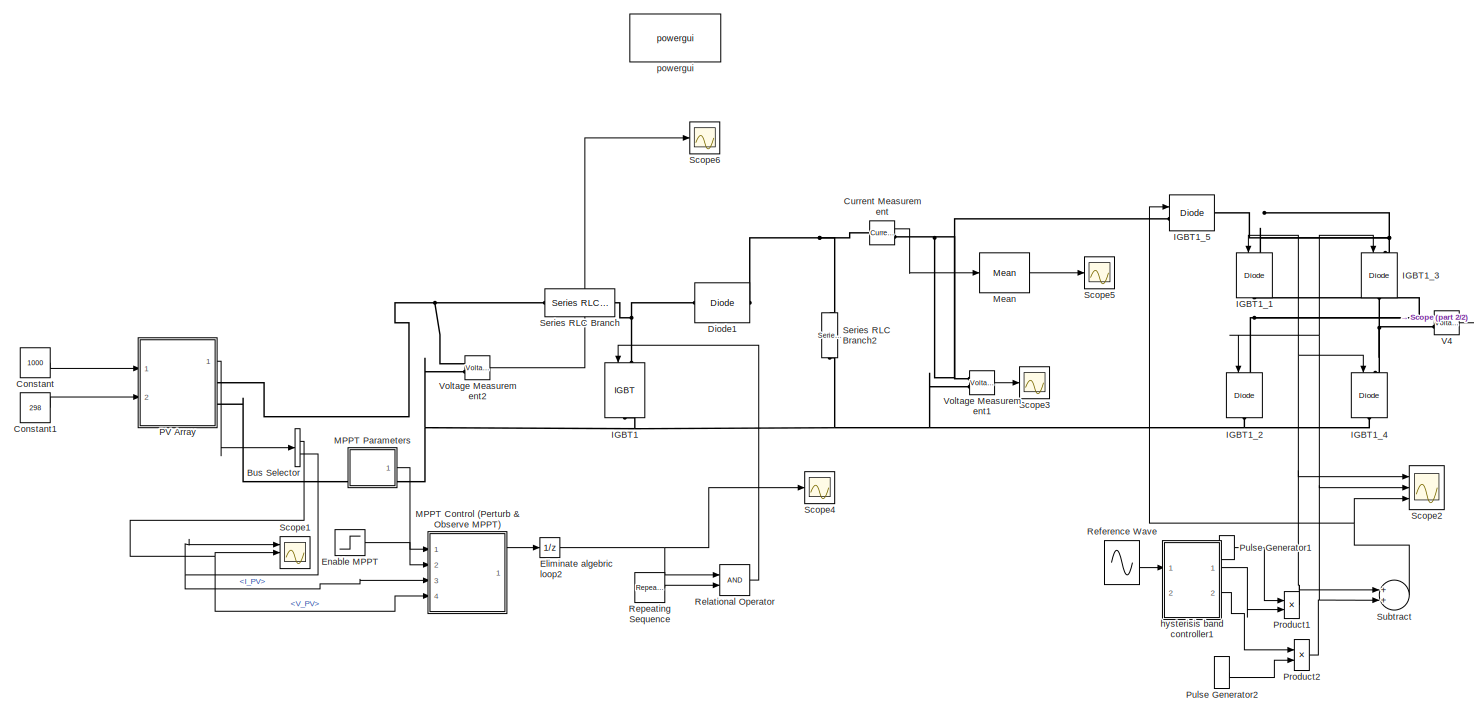
[diagram: root canvas - part 1/2, most of the canvas]
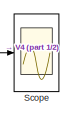
[diagram: root canvas - part 2/2, middle right region]
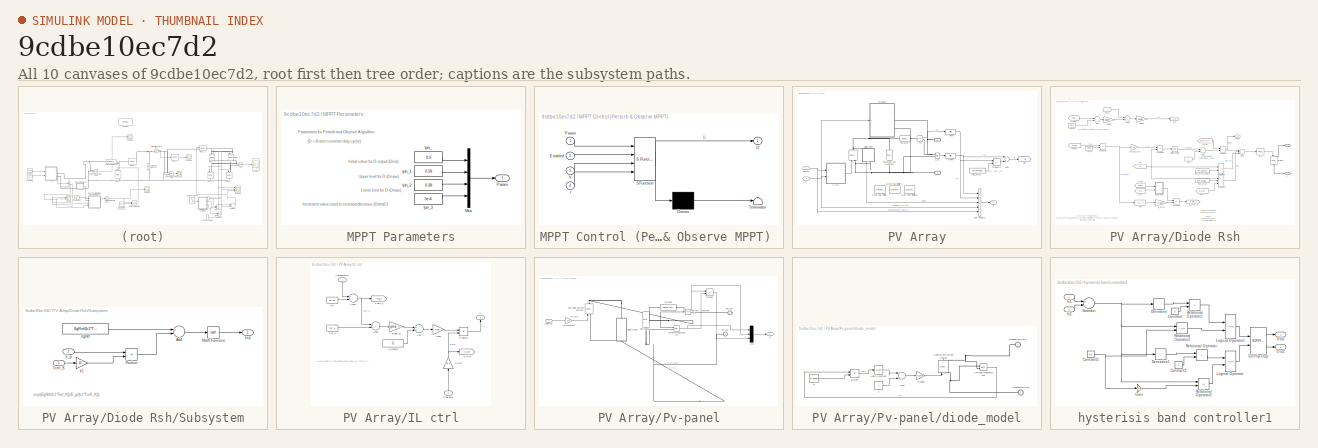
[diagram: thumbnail index - all 10 canvases of the model, root first then tree order]
MODEL slx_9cdbe10ec7d2
KIND model
CONFIG AbsTol = auto
CONFIG EnableMultiTasking = off
CONFIG FixedStep = auto
CONFIG MaxStep = auto
CONFIG MinStep = auto
CONFIG RelTol = 1e-3
CONFIG SampleTimeConstraint = Unconstrained
CONFIG Solver = VariableStepAuto
CONFIG SolverName = VariableStepAuto
CONFIG StartTime = 0.0
CONFIG StopTime = 2
BLOCK [BusSelector] Bus Selector
  OutputAsBus = off
  OutputSignals = V_PV,I_PV
  Ports = [1, 2]
BLOCK [Constant] Constant
  Value = 1000
BLOCK [Constant] Constant1
  Value = 298
BLOCK [Reference] Current Measurement  REF=powerlib/Measurements/Current Measurement
  Ports = [0, 1, 0, 0, 0, 1, 1]
  SourceBlock = powerlib/Measurements/Current Measurement
  SourceProductBaseCode = PS
  SourceProductName = Simscape Electrical
  SourceType = Current Measurement
  UserDataPersistent = on
BLOCK [Reference] Diode1  REF=powerlib/Power
Electronics/Diode
  Ports = [0, 0, 0, 0, 0, 1, 1]
  SourceBlock = powerlib/Power\nElectronics/Diode
  SourceProductBaseCode = PS
  SourceProductName = Simscape Electrical
  SourceType = Diode
BLOCK [UnitDelay] Eliminate algebric loop2
  InputProcessing = Elements as channels (sample based)
  SampleTime = Ts_Control
BLOCK [Step] Enable MPPT
  SampleTime = 0
  Time = 0.3
BLOCK [Reference] IGBT1  REF=powerlib/Power
Electronics/IGBT
  Ports = [1, 0, 0, 0, 0, 1, 1]
  SourceBlock = powerlib/Power\nElectronics/IGBT
  SourceProductBaseCode = PS
  SourceProductName = Simscape Electrical
  SourceType = IGBT
BLOCK [Reference] IGBT1_1  REF=powerlib/Power
Electronics/IGBT//Diode
  Ports = [1, 0, 0, 0, 0, 1, 1]
  SourceBlock = powerlib/Power\nElectronics/IGBT//Diode
  SourceProductBaseCode = PS
  SourceProductName = Simscape Electrical
  SourceType = IGBT/Diode
BLOCK [Reference] IGBT1_2  REF=powerlib/Power
Electronics/IGBT//Diode
  Ports = [1, 0, 0, 0, 0, 1, 1]
  SourceBlock = powerlib/Power\nElectronics/IGBT//Diode
  SourceProductBaseCode = PS
  SourceProductName = Simscape Electrical
  SourceType = IGBT/Diode
BLOCK [Reference] IGBT1_3  REF=powerlib/Power
Electronics/IGBT//Diode
  Ports = [1, 0, 0, 0, 0, 1, 1]
  SourceBlock = powerlib/Power\nElectronics/IGBT//Diode
  SourceProductBaseCode = PS
  SourceProductName = Simscape Electrical
  SourceType = IGBT/Diode
BLOCK [Reference] IGBT1_4  REF=powerlib/Power
Electronics/IGBT//Diode
  Ports = [1, 0, 0, 0, 0, 1, 1]
  SourceBlock = powerlib/Power\nElectronics/IGBT//Diode
  SourceProductBaseCode = PS
  SourceProductName = Simscape Electrical
  SourceType = IGBT/Diode
BLOCK [Reference] IGBT1_5  REF=powerlib/Power
Electronics/IGBT//Diode
  Ports = [1, 0, 0, 0, 0, 1, 1]
  SourceBlock = powerlib/Power\nElectronics/IGBT//Diode
  SourceProductBaseCode = PS
  SourceProductName = Simscape Electrical
  SourceType = IGBT/Diode
BLOCK [SubSystem] MPPT Control (Perturb & Observe MPPT) 
  ErrorFcn = Stateflow.Translate.translate
  PermitHierarchicalResolution = ExplicitOnly
  Ports = [4, 1]
  RequestExecContextInheritance = off
  SFBlockType = MATLAB Function
  TreatAsAtomicUnit = on
BLOCK [Demux] MPPT Control (Perturb & Observe MPPT) / Demux 
  Outputs = 1
  Ports = [1, 1]
BLOCK [S-Function] MPPT Control (Perturb & Observe MPPT) / SFunction 
  EnableBusSupport = on
  FunctionName = sf_sfun
  PortCounts = [4 2]
  Ports = [4, 2]
  SFcnIsStateOwnerBlock = off
  SFunctionDeploymentMode = off
  Tag = Stateflow S-Function modelv1 4
BLOCK [Terminator] MPPT Control (Perturb & Observe MPPT) / Terminator 
BLOCK [Outport] MPPT Control (Perturb & Observe MPPT) /D
  IconDisplay = Port number
BLOCK [Inport] MPPT Control (Perturb & Observe MPPT) /Enabled
  IconDisplay = Port number
  Port = 2
BLOCK [Inport] MPPT Control (Perturb & Observe MPPT) /I
  IconDisplay = Port number
  Port = 4
BLOCK [Inport] MPPT Control (Perturb & Observe MPPT) /Param
  IconDisplay = Port number
BLOCK [Inport] MPPT Control (Perturb & Observe MPPT) /V
  IconDisplay = Port number
  Port = 3
BLOCK [SubSystem] MPPT Parameters
  Ports = [0, 1]
  RequestExecContextInheritance = off
BLOCK [Constant] MPPT Parameters/Iph_
  Value = 0.5
BLOCK [Constant] MPPT Parameters/Iph_1
  Value = 0.58
BLOCK [Constant] MPPT Parameters/Iph_2
  Value = 0.38
BLOCK [Constant] MPPT Parameters/Iph_3
  Value = 3e-4
BLOCK [Mux] MPPT Parameters/Mux
  DisplayOption = bar
  Ports = [4, 1]
BLOCK [Outport] MPPT Parameters/Param
  IconDisplay = Port number
BLOCK [Reference] Mean  REF=powerlib_meascontrol/Measurements/Mean
  Ports = [1, 1]
  SourceBlock = powerlib_meascontrol/Measurements/Mean
  SourceProductBaseCode = PS
  SourceProductName = Simscape Electrical
  SourceType = Mean
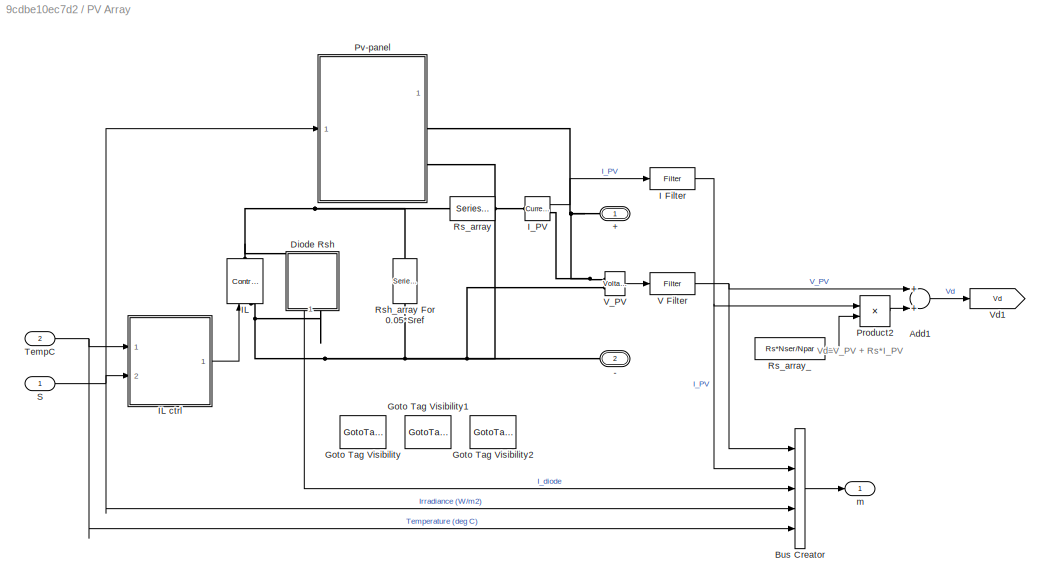
BLOCK [SubSystem] PV Array
  AncestorBlock = re_lib/Solar/PV Array
  CloseFcn = sps_rtmsupport('CloseFcn',gcbh);
  CopyFcn = sps_rtmsupport('CopyFcn',gcbh);
  DeleteFcn = sps_rtmsupport('DeleteFcn',gcbh);
  DialogController = POWERSYS.PowerSysDialog
  LoadFcn = sps_rtmsupport('LoadFcn',gcbh);
  ModelCloseFcn = sps_rtmsupport('ModelCloseFcn',gcbh);
  NameChangeFcn = sps_rtmsupport('NameChangeFcn',gcbh);
  OpenFcn = %assignin('base','PVMaskOpening',1);\n%open_system(gcb,'mask')\n%assignin('base','PVMaskOpening',0);\nsps_rtmsupport('OpenFcn',gcbh, [3 6 7 23]);
  Ports = [2, 1, 0, 0, 0, 0, 2]
  PostSaveFcn = sps_rtmsupport('PostSaveFcn',gcbh);
  PreCopyFcn = sps_rtmsupport('PreCopyFcn',gcbh);
  PreDeleteFcn = sps_rtmsupport('PreDeleteFcn',gcbh);
  PreSaveFcn = sps_rtmsupport('PreSaveFcn',gcbh);
  RequestExecContextInheritance = off
  StartFcn = sps_rtmsupport('StartFcn',gcbh);
  StopFcn = sps_rtmsupport('StopFcn',gcbh);
  UndoDeleteFcn = sps_rtmsupport('UndoDeleteFcn',gcbh);
BLOCK [PMIOPort] PV Array/+
  Side = Right
BLOCK [PMIOPort] PV Array/-
  Port = 2
  Side = Right
BLOCK [Sum] PV Array/Add1
  InputSameDT = off
  OutDataTypeStr = Inherit: Inherit via internal rule
  Ports = [2, 1]
  SaturateOnIntegerOverflow = off
BLOCK [BusCreator] PV Array/Bus Creator
  DisplayOption = bar
  InheritFromInputs = on
  Inputs = 5
  Ports = [5, 1]
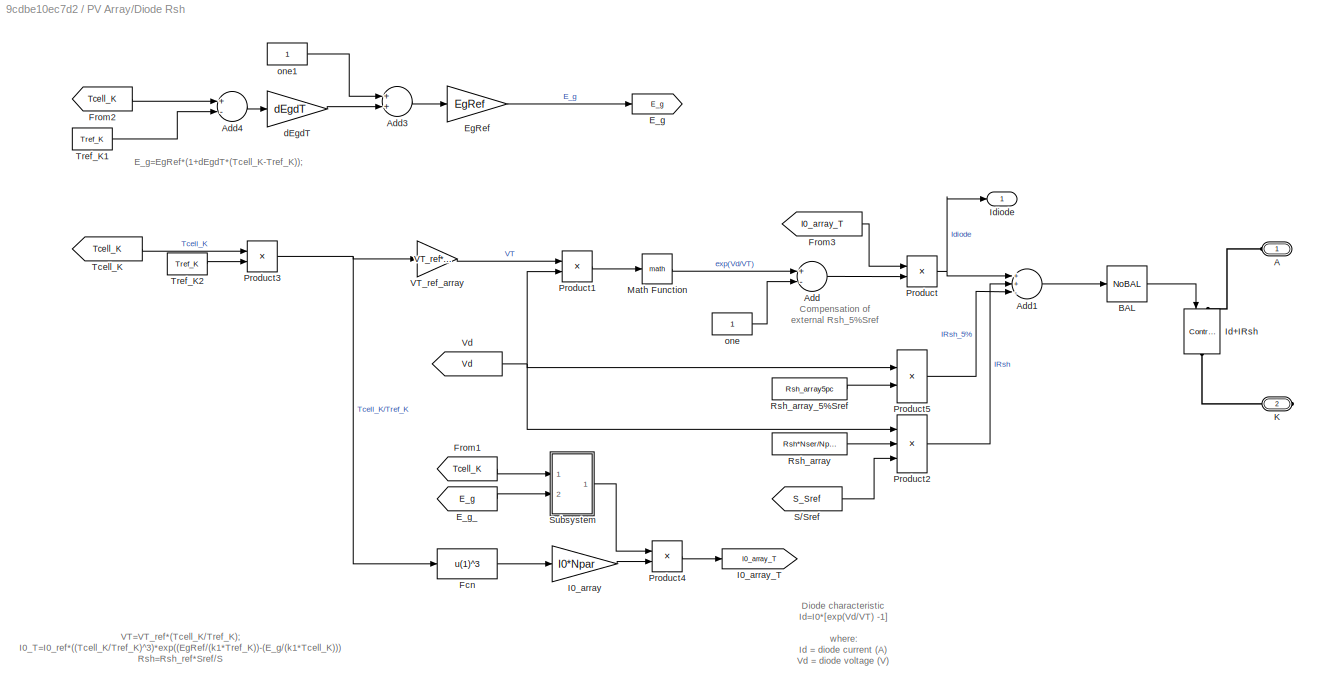
BLOCK [SubSystem] PV Array/Diode Rsh
  Ports = [0, 1, 0, 0, 0, 1, 1]
  RequestExecContextInheritance = off
BLOCK [PMIOPort] PV Array/Diode Rsh/A
  Side = Left
BLOCK [Sum] PV Array/Diode Rsh/Add
  InputSameDT = off
  Inputs = +-
  OutDataTypeStr = Inherit: Inherit via internal rule
  Ports = [2, 1]
  SaturateOnIntegerOverflow = off
BLOCK [Sum] PV Array/Diode Rsh/Add1
  InputSameDT = off
  Inputs = ++-
  OutDataTypeStr = Inherit: Inherit via internal rule
  Ports = [3, 1]
  SaturateOnIntegerOverflow = off
BLOCK [Sum] PV Array/Diode Rsh/Add3
  InputSameDT = off
  OutDataTypeStr = Inherit: Inherit via internal rule
  Ports = [2, 1]
  SaturateOnIntegerOverflow = off
BLOCK [Sum] PV Array/Diode Rsh/Add4
  InputSameDT = off
  Inputs = +-
  OutDataTypeStr = Inherit: Inherit via internal rule
  Ports = [2, 1]
  SaturateOnIntegerOverflow = off
BLOCK [Reference] PV Array/Diode Rsh/BAL  REF=spsPVarrayModel/NoBAL
  Ports = [1, 1]
  SourceBlock = spsPVarrayModel/NoBAL
  SourceType = SubSystem
BLOCK [Goto] PV Array/Diode Rsh/E_g
  GotoTag = E_g
BLOCK [From] PV Array/Diode Rsh/E_g_
  GotoTag = E_g
BLOCK [Gain] PV Array/Diode Rsh/EgRef
  Gain = EgRef
  OutDataTypeStr = Inherit: Inherit via internal rule
  ParamDataTypeStr = Inherit: Inherit via internal rule
  SaturateOnIntegerOverflow = off
BLOCK [Fcn] PV Array/Diode Rsh/Fcn
  Expr = u(1)^3
BLOCK [From] PV Array/Diode Rsh/From1
  GotoTag = Tcell_K
  TagVisibility = scoped
BLOCK [From] PV Array/Diode Rsh/From2
  GotoTag = Tcell_K
  TagVisibility = scoped
BLOCK [From] PV Array/Diode Rsh/From3
  GotoTag = I0_array_T
BLOCK [Gain] PV Array/Diode Rsh/I0_array
  Gain = I0*Npar
  OutDataTypeStr = Inherit: Inherit via internal rule
  ParamDataTypeStr = Inherit: Inherit via internal rule
  SaturateOnIntegerOverflow = off
BLOCK [Goto] PV Array/Diode Rsh/I0_array_T
  GotoTag = I0_array_T
BLOCK [Reference] PV Array/Diode Rsh/Id+IRsh  REF=powerlib/Electrical
Sources/Controlled Current Source
  Ports = [1, 0, 0, 0, 0, 1, 1]
  SourceBlock = powerlib/Electrical\nSources/Controlled Current Source
  SourceProductBaseCode = PS
  SourceProductName = Simscape Electrical
  SourceType = Controlled Current Source
BLOCK [Outport] PV Array/Diode Rsh/Idiode
  IconDisplay = Port number
BLOCK [PMIOPort] PV Array/Diode Rsh/K
  Port = 2
  Side = Right
BLOCK [Math] PV Array/Diode Rsh/Math Function
  Ports = [1, 1]
BLOCK [Product] PV Array/Diode Rsh/Product
  InputSameDT = off
  OutDataTypeStr = Inherit: Inherit via internal rule
  Ports = [2, 1]
  SaturateOnIntegerOverflow = off
BLOCK [Product] PV Array/Diode Rsh/Product1
  InputSameDT = off
  Inputs = /*
  OutDataTypeStr = Inherit: Inherit via internal rule
  Ports = [2, 1]
  SaturateOnIntegerOverflow = off
BLOCK [Product] PV Array/Diode Rsh/Product2
  InputSameDT = off
  Inputs = */*
  OutDataTypeStr = Inherit: Inherit via internal rule
  Ports = [3, 1]
  SaturateOnIntegerOverflow = off
BLOCK [Product] PV Array/Diode Rsh/Product3
  InputSameDT = off
  Inputs = */
  OutDataTypeStr = Inherit: Inherit via internal rule
  Ports = [2, 1]
  SaturateOnIntegerOverflow = off
BLOCK [Product] PV Array/Diode Rsh/Product4
  InputSameDT = off
  Inputs = **
  OutDataTypeStr = Inherit: Inherit via internal rule
  Ports = [2, 1]
  SaturateOnIntegerOverflow = off
BLOCK [Product] PV Array/Diode Rsh/Product5
  InputSameDT = off
  Inputs = */
  OutDataTypeStr = Inherit: Inherit via internal rule
  Ports = [2, 1]
  SaturateOnIntegerOverflow = off
BLOCK [Constant] PV Array/Diode Rsh/Rsh_array
  Value = Rsh*Nser/Npar
BLOCK [Constant] PV Array/Diode Rsh/Rsh_array_5%Sref
  Value = Rsh_array5pc
BLOCK [From] PV Array/Diode Rsh/S//Sref
  GotoTag = S_Sref
  TagVisibility = scoped
BLOCK [SubSystem] PV Array/Diode Rsh/Subsystem
  Ports = [2, 1]
  RequestExecContextInheritance = off
BLOCK [Sum] PV Array/Diode Rsh/Subsystem/Add
  InputSameDT = off
  Inputs = +-
  OutDataTypeStr = Inherit: Inherit via internal rule
  Ports = [2, 1]
  SaturateOnIntegerOverflow = off
BLOCK [Inport] PV Array/Diode Rsh/Subsystem/E_g
  IconDisplay = Port number
  Port = 2
BLOCK [Constant] PV Array/Diode Rsh/Subsystem/EgRef
  Value = EgRef/(k1*Tref_K)
BLOCK [Math] PV Array/Diode Rsh/Subsystem/Math Function
  Ports = [1, 1]
BLOCK [Product] PV Array/Diode Rsh/Subsystem/Product
  InputSameDT = off
  Inputs = */
  OutDataTypeStr = Inherit: Inherit via internal rule
  Ports = [2, 1]
  RndMeth = Floor
  SaturateOnIntegerOverflow = off
BLOCK [Inport] PV Array/Diode Rsh/Subsystem/Tcell_K
  IconDisplay = Port number
BLOCK [Outport] PV Array/Diode Rsh/Subsystem/exp
  IconDisplay = Port number
BLOCK [Gain] PV Array/Diode Rsh/Subsystem/k1
  Gain = k1
  OutDataTypeStr = Inherit: Inherit via internal rule
  ParamDataTypeStr = Inherit: Inherit via internal rule
  SaturateOnIntegerOverflow = off
BLOCK [From] PV Array/Diode Rsh/Tcell_K
  GotoTag = Tcell_K
  TagVisibility = scoped
BLOCK [Constant] PV Array/Diode Rsh/Tref_K1
  Value = Tref_K
BLOCK [Constant] PV Array/Diode Rsh/Tref_K2
  Value = Tref_K
BLOCK [Gain] PV Array/Diode Rsh/VT_ref_array
  Gain = VT_ref*Nser
  OutDataTypeStr = Inherit: Inherit via internal rule
  ParamDataTypeStr = Inherit: Inherit via internal rule
  SaturateOnIntegerOverflow = off
BLOCK [From] PV Array/Diode Rsh/Vd
  GotoTag = Vd
  TagVisibility = scoped
BLOCK [Gain] PV Array/Diode Rsh/dEgdT
  Gain = dEgdT
  OutDataTypeStr = Inherit: Inherit via internal rule
  ParamDataTypeStr = Inherit: Inherit via internal rule
  SaturateOnIntegerOverflow = off
BLOCK [Constant] PV Array/Diode Rsh/one
BLOCK [Constant] PV Array/Diode Rsh/one1
BLOCK [GotoTagVisibility] PV Array/Goto Tag Visibility
  GotoTag = S_Sref
BLOCK [GotoTagVisibility] PV Array/Goto Tag Visibility1
  GotoTag = Vd
BLOCK [GotoTagVisibility] PV Array/Goto Tag Visibility2
  GotoTag = Tcell_K
BLOCK [Reference] PV Array/I Filter  REF=spsPVarrayModel/Filter
  Ports = [1, 1]
  SourceBlock = spsPVarrayModel/Filter
  SourceType = SubSystem
BLOCK [Reference] PV Array/IL  REF=powerlib/Electrical
Sources/Controlled Current Source
  Ports = [1, 0, 0, 0, 0, 1, 1]
  SourceBlock = powerlib/Electrical\nSources/Controlled Current Source
  SourceProductBaseCode = PS
  SourceProductName = Simscape Electrical
  SourceType = Controlled Current Source
BLOCK [SubSystem] PV Array/IL ctrl
  Ports = [2, 1]
  RequestExecContextInheritance = off
BLOCK [Constant] PV Array/IL ctrl/0_K
  Value = 273.15
BLOCK [Gain] PV Array/IL ctrl/1//Sref
  Gain = 1e-3
  OutDataTypeStr = Inherit: Inherit via internal rule
  ParamDataTypeStr = Inherit: Inherit via internal rule
  SaturateOnIntegerOverflow = off
BLOCK [Sum] PV Array/IL ctrl/Add
  InputSameDT = off
  OutDataTypeStr = Inherit: Inherit via internal rule
  Ports = [2, 1]
  SaturateOnIntegerOverflow = off
BLOCK [Sum] PV Array/IL ctrl/Add2
  InputSameDT = off
  OutDataTypeStr = Inherit: Inherit via internal rule
  Ports = [2, 1]
  SaturateOnIntegerOverflow = off
BLOCK [Sum] PV Array/IL ctrl/Add3
  InputSameDT = off
  Inputs = +-
  OutDataTypeStr = Inherit: Inherit via internal rule
  Ports = [2, 1]
  SaturateOnIntegerOverflow = off
BLOCK [Outport] PV Array/IL ctrl/IL
  IconDisplay = Port number
BLOCK [Constant] PV Array/IL ctrl/IL_module
  Value = IL
BLOCK [Inport] PV Array/IL ctrl/Irradiance
  IconDisplay = Port number
  Port = 2
BLOCK [Gain] PV Array/IL ctrl/Npar
  Gain = Npar
  OutDataTypeStr = Inherit: Inherit via internal rule
  ParamDataTypeStr = Inherit: Inherit via internal rule
  SaturateOnIntegerOverflow = off
BLOCK [Product] PV Array/IL ctrl/Product1
  InputSameDT = off
  Inputs = **
  OutDataTypeStr = Inherit: Inherit via internal rule
  Ports = [2, 1]
  SaturateOnIntegerOverflow = off
BLOCK [Goto] PV Array/IL ctrl/S//Sref
  GotoTag = S_Sref
  TagVisibility = scoped
BLOCK [Goto] PV Array/IL ctrl/Tcell_K
  GotoTag = Tcell_K
  TagVisibility = scoped
BLOCK [Inport] PV Array/IL ctrl/Temperature
  IconDisplay = Port number
BLOCK [Constant] PV Array/IL ctrl/Tref_K
  Value = Tref_K
BLOCK [Gain] PV Array/IL ctrl/alpha_Isc
  Gain = alpha_Isc
  OutDataTypeStr = Inherit: Inherit via internal rule
  ParamDataTypeStr = Inherit: Inherit via internal rule
  SaturateOnIntegerOverflow = off
BLOCK [Reference] PV Array/I_PV  REF=powerlib/Measurements/Current Measurement
  Ports = [0, 1, 0, 0, 0, 1, 1]
  SourceBlock = powerlib/Measurements/Current Measurement
  SourceProductBaseCode = PS
  SourceProductName = Simscape Electrical
  SourceType = Current Measurement
BLOCK [Product] PV Array/Product2
  InputSameDT = off
  Inputs = **
  OutDataTypeStr = Inherit: Inherit via internal rule
  Ports = [2, 1]
  SaturateOnIntegerOverflow = off
BLOCK [SubSystem] PV Array/Pv-panel
  Ports = [1, 1, 0, 0, 0, 0, 2]
  RequestExecContextInheritance = off
BLOCK [Reference] PV Array/Pv-panel/Controlled Current Source1  REF=powerlib/Electrical
Sources/Controlled Current Source
  Ports = [1, 0, 0, 0, 0, 1, 1]
  SourceBlock = powerlib/Electrical\nSources/Controlled Current Source
  SourceProductBaseCode = PS
  SourceProductName = Simscape Electrical
  SourceType = Controlled Current Source
BLOCK [Reference] PV Array/Pv-panel/Current Measurement  REF=powerlib/Measurements/Current Measurement
  Ports = [0, 1, 0, 0, 0, 1, 1]
  SourceBlock = powerlib/Measurements/Current Measurement
  SourceProductBaseCode = PS
  SourceProductName = Simscape Electrical
  SourceType = Current Measurement
BLOCK [Gain] PV Array/Pv-panel/Iph-panel//G0
  Gain = Iph_panel/G0
  OutDataTypeStr = Inherit: Inherit via internal rule
  ParamDataTypeStr = Inherit: Inherit via internal rule
  SaturateOnIntegerOverflow = off
BLOCK [Outport] PV Array/Pv-panel/M
  IconDisplay = Port number
BLOCK [Mux] PV Array/Pv-panel/Mux
  DisplayOption = bar
  Inputs = 3
  Ports = [3, 1]
BLOCK [Product] PV Array/Pv-panel/Product
  InputSameDT = off
  OutDataTypeStr = Inherit: Inherit via internal rule
  Ports = [2, 1]
  RndMeth = Floor
  SaturateOnIntegerOverflow = off
BLOCK [Reference] PV Array/Pv-panel/Rs_panel  REF=powerlib/Elements/Series RLC Branch
  Ports = [0, 0, 0, 0, 0, 1, 1]
  SourceBlock = powerlib/Elements/Series RLC Branch
  SourceProductBaseCode = PS
  SourceProductName = Simscape Electrical
  SourceType = Series RLC Branch
BLOCK [Reference] PV Array/Pv-panel/Rsh_panel  REF=powerlib/Elements/Series RLC Branch
  Ports = [0, 0, 0, 0, 0, 1, 1]
  SourceBlock = powerlib/Elements/Series RLC Branch
  SourceProductBaseCode = PS
  SourceProductName = Simscape Electrical
  SourceType = Series RLC Branch
BLOCK [PMIOPort] PV Array/Pv-panel/Vdc_out+
  Side = Right
BLOCK [PMIOPort] PV Array/Pv-panel/Vdc_out-
  Port = 2
  Side = Right
BLOCK [Reference] PV Array/Pv-panel/Voltage Measurement  REF=powerlib/Measurements/Voltage Measurement
  Ports = [0, 1, 0, 0, 0, 2]
  SourceBlock = powerlib/Measurements/Voltage Measurement
  SourceProductBaseCode = PS
  SourceProductName = Simscape Electrical
  SourceType = Voltage Measurement
BLOCK [SubSystem] PV Array/Pv-panel/diode_model
  Ports = [0, 0, 0, 0, 0, 1, 1]
  RequestExecContextInheritance = off
BLOCK [Constant] PV Array/Pv-panel/diode_model/1
BLOCK [PMIOPort] PV Array/Pv-panel/diode_model/Connection Port
  Side = Left
BLOCK [PMIOPort] PV Array/Pv-panel/diode_model/Connection Port1
  Port = 2
  Side = Right
BLOCK [Reference] PV Array/Pv-panel/diode_model/Controlled Current Source  REF=powerlib/Electrical
Sources/Controlled Current Source
  Ports = [1, 0, 0, 0, 0, 1, 1]
  SourceBlock = powerlib/Electrical\nSources/Controlled Current Source
  SourceProductBaseCode = PS
  SourceProductName = Simscape Electrical
  SourceType = Controlled Current Source
BLOCK [Product] PV Array/Pv-panel/diode_model/Divide
  InputSameDT = off
  OutDataTypeStr = Inherit: Inherit via internal rule
  Ports = [2, 1]
  RndMeth = Floor
  SaturateOnIntegerOverflow = off
BLOCK [Gain] PV Array/Pv-panel/diode_model/I0_panel
  Gain = I0_panel
  OutDataTypeStr = Inherit: Inherit via internal rule
  ParamDataTypeStr = Inherit: Inherit via internal rule
  SaturateOnIntegerOverflow = off
BLOCK [Math] PV Array/Pv-panel/diode_model/Math Function
  Ports = [1, 1]
BLOCK [Sum] PV Array/Pv-panel/diode_model/Sum
  InputSameDT = off
  Inputs = |+-
  OutDataTypeStr = Inherit: Inherit via internal rule
  Ports = [2, 1]
  SaturateOnIntegerOverflow = off
BLOCK [Reference] PV Array/Pv-panel/diode_model/Voltage Measurement  REF=powerlib/Measurements/Voltage Measurement
  Ports = [0, 1, 0, 0, 0, 2]
  SourceBlock = powerlib/Measurements/Voltage Measurement
  SourceProductBaseCode = PS
  SourceProductName = Simscape Electrical
  SourceType = Voltage Measurement
BLOCK [Constant] PV Array/Pv-panel/diode_model/vt
  Value = Vt_panel
BLOCK [Inport] PV Array/Pv-panel/iradian(g)
  IconDisplay = Port number
BLOCK [Reference] PV Array/Rs_array  REF=powerlib/Elements/Series RLC Branch
  Ports = [0, 0, 0, 0, 0, 1, 1]
  SourceBlock = powerlib/Elements/Series RLC Branch
  SourceProductBaseCode = PS
  SourceProductName = Simscape Electrical
  SourceType = Series RLC Branch
BLOCK [Constant] PV Array/Rs_array_
  Value = Rs*Nser/Npar
BLOCK [Reference] PV Array/Rsh_array For 0.05*Sref  REF=powerlib/Elements/Series RLC Branch
  Ports = [0, 0, 0, 0, 0, 1, 1]
  SourceBlock = powerlib/Elements/Series RLC Branch
  SourceProductBaseCode = PS
  SourceProductName = Simscape Electrical
  SourceType = Series RLC Branch
BLOCK [Inport] PV Array/S
  IconDisplay = Port number
BLOCK [Inport] PV Array/TempC
  IconDisplay = Port number
  Port = 2
BLOCK [Reference] PV Array/V Filter  REF=spsPVarrayModel/Filter
  Ports = [1, 1]
  SourceBlock = spsPVarrayModel/Filter
  SourceType = SubSystem
BLOCK [Reference] PV Array/V_PV  REF=powerlib/Measurements/Voltage Measurement
  Ports = [0, 1, 0, 0, 0, 2]
  SourceBlock = powerlib/Measurements/Voltage Measurement
  SourceProductBaseCode = PS
  SourceProductName = Simscape Electrical
  SourceType = Voltage Measurement
BLOCK [Goto] PV Array/Vd1
  GotoTag = Vd
  TagVisibility = scoped
BLOCK [Outport] PV Array/m
  IconDisplay = Port number
BLOCK [Product] Product1
  InputSameDT = off
  OutDataTypeStr = Inherit: Inherit via internal rule
  Ports = [2, 1]
  SaturateOnIntegerOverflow = off
BLOCK [Product] Product2
  InputSameDT = off
  OutDataTypeStr = Inherit: Inherit via internal rule
  Ports = [2, 1]
  SaturateOnIntegerOverflow = off
BLOCK [DiscretePulseGenerator] Pulse Generator1
  Period = 20e-3
  Ports = [0, 1]
  PulseType = Time based
  PulseWidth = 49.5
BLOCK [DiscretePulseGenerator] Pulse Generator2
  Period = 20e-3
  PhaseDelay = 10e-3
  Ports = [0, 1]
  PulseType = Time based
  PulseWidth = 49.5
BLOCK [Sin] Reference Wave
  Amplitude = 2
  Frequency = 2*pi*50
  Ports = [0, 1]
  SampleTime = 0
BLOCK [RelationalOperator] Relational Operator
  InputSameDT = off
  OutDataTypeStr = boolean
  Ports = [2, 1]
  RndMeth = Simplest
BLOCK [Reference] Repeating Sequence  REF=simulink/Sources/Repeating
Sequence
  Ports = [0, 1]
  SourceBlock = simulink/Sources/Repeating\nSequence
  SourceProductBaseCode = SL
  SourceProductName = Simulink
  SourceType = Repeating table
BLOCK [Scope] Scope
  Floating = off
  NumInputPorts = 1
  Ports = [1]
  ScopeSpecificationString = Simulink.scopes.TimeScopeBlockCfg('CurrentConfiguration', extmgr.ConfigurationSet(extmgr.Configuration('Core','General UI',true),extmgr.Configuration('Core','Source UI',true),extmgr.Configuration('Sources','WiredSimulink',true),extmgr.Configuration('Visuals','Time Domain',true,'SerializedDisplays',{struct('MinYLimReal','-125.00000','MaxYLimReal','125.00000','YLabelReal','','MinYLimMag',' 0.00000',...<+1384ch>
BLOCK [Scope] Scope1
  Floating = off
  NumInputPorts = 3
  Ports = [3]
  ScopeSpecificationString = Simulink.scopes.TimeScopeBlockCfg('CurrentConfiguration', extmgr.ConfigurationSet(extmgr.Configuration('Core','General UI',true),extmgr.Configuration('Core','Source UI',true),extmgr.Configuration('Sources','WiredSimulink',true,'DataLoggingSaveFormat','StructureWithTime','DataLoggingDecimation','1','DataLoggingDecimateData',true,'DataLoggingVariableName','ScopeData1'),extmgr.Configuration('Visuals'...<+3044ch>
BLOCK [Scope] Scope2
  Floating = off
  NumInputPorts = 3
  Ports = [3]
  ScopeSpecificationString = Simulink.scopes.TimeScopeBlockCfg('CurrentConfiguration', extmgr.ConfigurationSet(extmgr.Configuration('Core','General UI',true),extmgr.Configuration('Core','Source UI',true),extmgr.Configuration('Sources','WiredSimulink',true,'DataLogging',true,'DataLoggingVariableName','ScopeData2','DataLoggingSaveFormat','StructureWithTime','DataLoggingMaxPoints','500000','DataLoggingDecimation','1','DataLoggin...<+3170ch>
BLOCK [Scope] Scope3
  Floating = off
  NumInputPorts = 1
  Ports = [1]
  ScopeSpecificationString = Simulink.scopes.TimeScopeBlockCfg('CurrentConfiguration', extmgr.ConfigurationSet(extmgr.Configuration('Core','General UI',true),extmgr.Configuration('Core','Source UI',true),extmgr.Configuration('Sources','WiredSimulink',true,'DataLoggingVariableName','ScopeData3','DataLoggingSaveFormat','StructureWithTime','DataLoggingDecimation','1','DataLoggingDecimateData',true),extmgr.Configuration('Visuals'...<+1768ch>
BLOCK [Scope] Scope4
  Floating = off
  NumInputPorts = 1
  Ports = [1]
  ScopeSpecificationString = Simulink.scopes.TimeScopeBlockCfg('CurrentConfiguration', extmgr.ConfigurationSet(extmgr.Configuration('Core','General UI',true),extmgr.Configuration('Core','Source UI',true),extmgr.Configuration('Sources','WiredSimulink',true,'DataLoggingVariableName','ScopeData4','DataLoggingSaveFormat','StructureWithTime','DataLoggingDecimation','1','DataLoggingDecimateData',true),extmgr.Configuration('Visuals'...<+1723ch>
BLOCK [Scope] Scope5
  Floating = off
  NumInputPorts = 1
  Ports = [1]
  ScopeSpecificationString = Simulink.scopes.TimeScopeBlockCfg('CurrentConfiguration', extmgr.ConfigurationSet(extmgr.Configuration('Core','General UI',true),extmgr.Configuration('Core','Source UI',true),extmgr.Configuration('Sources','WiredSimulink',true,'DataLoggingVariableName','ScopeData5','DataLoggingSaveFormat','StructureWithTime','DataLoggingDecimation','1','DataLoggingDecimateData',true),extmgr.Configuration('Visuals'...<+1740ch>
BLOCK [Scope] Scope6
  Floating = off
  NumInputPorts = 1
  Ports = [1]
  ScopeSpecificationString = Simulink.scopes.TimeScopeBlockCfg('CurrentConfiguration', extmgr.ConfigurationSet(extmgr.Configuration('Core','General UI',true),extmgr.Configuration('Core','Source UI',true),extmgr.Configuration('Sources','WiredSimulink',true,'DataLoggingVariableName','ScopeData6','DataLoggingSaveFormat','StructureWithTime','DataLoggingDecimation','1','DataLoggingDecimateData',true),extmgr.Configuration('Visuals'...<+1739ch>
BLOCK [Reference] Series RLC Branch  REF=powerlib/Elements/Series RLC Branch
  Ports = [0, 0, 0, 0, 0, 1, 1]
  SourceBlock = powerlib/Elements/Series RLC Branch
  SourceProductBaseCode = PS
  SourceProductName = Simscape Electrical
  SourceType = Series RLC Branch
BLOCK [Reference] Series RLC Branch2  REF=powerlib/Elements/Series RLC Branch
  Ports = [0, 0, 0, 0, 0, 1, 1]
  SourceBlock = powerlib/Elements/Series RLC Branch
  SourceProductBaseCode = PS
  SourceProductName = Simscape Electrical
  SourceType = Series RLC Branch
BLOCK [Sum] Subtract
  InputSameDT = off
  OutDataTypeStr = Inherit: Inherit via internal rule
  Ports = [2, 1]
  SaturateOnIntegerOverflow = off
BLOCK [Reference] V4  REF=powerlib/Measurements/Voltage Measurement
  Ports = [0, 1, 0, 0, 0, 2]
  SourceBlock = powerlib/Measurements/Voltage Measurement
  SourceProductBaseCode = PS
  SourceProductName = Simscape Electrical
  SourceType = Voltage Measurement
BLOCK [Reference] Voltage Measurement1  REF=powerlib/Measurements/Voltage Measurement
  Ports = [0, 1, 0, 0, 0, 2]
  SourceBlock = powerlib/Measurements/Voltage Measurement
  SourceProductBaseCode = PS
  SourceProductName = Simscape Electrical
  SourceType = Voltage Measurement
BLOCK [Reference] Voltage Measurement2  REF=powerlib/Measurements/Voltage Measurement
  Ports = [0, 1, 0, 0, 0, 2]
  SourceBlock = powerlib/Measurements/Voltage Measurement
  SourceProductBaseCode = PS
  SourceProductName = Simscape Electrical
  SourceType = Voltage Measurement
BLOCK [SubSystem] hysterisis band controller1
  Ports = [2, 2]
  RequestExecContextInheritance = off
BLOCK [Constant] hysterisis band controller1/Constant
  Value = 0
BLOCK [Constant] hysterisis band controller1/Constant1
  Value = 0
BLOCK [Constant] hysterisis band controller1/Constant2
  Value = 0.1
BLOCK [Derivative] hysterisis band controller1/Derivative
BLOCK [Derivative] hysterisis band controller1/Derivative1
BLOCK [Gain] hysterisis band controller1/Gain
  Gain = -1
  OutDataTypeStr = Inherit: Inherit via internal rule
  ParamDataTypeStr = Inherit: Inherit via internal rule
  SaturateOnIntegerOverflow = off
BLOCK [Inport] hysterisis band controller1/In1
  IconDisplay = Port number
BLOCK [Inport] hysterisis band controller1/In2
  IconDisplay = Port number
  Port = 2
BLOCK [Logic] hysterisis band controller1/Logical Operator
  AllPortsSameDT = off
  OutDataTypeStr = boolean
  Ports = [2, 1]
BLOCK [Logic] hysterisis band controller1/Logical Operator1
  AllPortsSameDT = off
  OutDataTypeStr = boolean
  Ports = [2, 1]
BLOCK [Outport] hysterisis band controller1/Out1
  IconDisplay = Port number
BLOCK [Outport] hysterisis band controller1/Out2
  IconDisplay = Port number
  Port = 2
BLOCK [RelationalOperator] hysterisis band controller1/Relational Operator
  InputSameDT = off
  Operator = <
  OutDataTypeStr = boolean
  Ports = [2, 1]
BLOCK [RelationalOperator] hysterisis band controller1/Relational Operator1
  InputSameDT = off
  Operator = >
  OutDataTypeStr = boolean
  Ports = [2, 1]
BLOCK [RelationalOperator] hysterisis band controller1/Relational Operator2
  InputSameDT = off
  OutDataTypeStr = boolean
  Ports = [2, 1]
BLOCK [RelationalOperator] hysterisis band controller1/Relational Operator3
  InputSameDT = off
  Operator = <=
  OutDataTypeStr = boolean
  Ports = [2, 1]
BLOCK [Reference] hysterisis band controller1/S-R Flip-Flop  REF=simulink_extras/Flip Flops/S-R
Flip-Flop
  Ports = [2, 2]
  SourceBlock = simulink_extras/Flip Flops/S-R\nFlip-Flop
  SourceProductBaseCode = SL
  SourceProductName = Simulink
  SourceType = SRFlipFlop
BLOCK [Sum] hysterisis band controller1/Subtract
  InputSameDT = off
  Inputs = +-
  OutDataTypeStr = Inherit: Inherit via internal rule
  Ports = [2, 1]
  SaturateOnIntegerOverflow = off
BLOCK [Reference] powergui  REF=powerlib/powergui
  Ports = []
  Priority = 1
  SourceBlock = powerlib/powergui
  SourceProductBaseCode = PS
  SourceProductName = Simscape Power Systems
  SourceType = PSB option menu block
ANNOTATION MPPT Parameters: (D = Boost converter duty cycle)
ANNOTATION MPPT Parameters: Increment value used to increase/decrease (DeltaD)
ANNOTATION MPPT Parameters: Initial value for D output (Dinit)
ANNOTATION MPPT Parameters: Lower limit for D (Dmax)
ANNOTATION MPPT Parameters: Parameters for Perturb and Observe Algorithm:
ANNOTATION MPPT Parameters: Upper limit for D (Dmax)
ANNOTATION PV Array: Vd=V_PV + Rs*I_PV
ANNOTATION PV Array/Diode Rsh: Compensation of external Rsh_5%Sref
ANNOTATION PV Array/Diode Rsh: Diode characteristic Id=I0*[exp(Vd/VT) -1] where: Id = diode current (A) Vd = diode voltage (V) I0 = diode saturation current (A) VT = temperature voltage = k*Tcell_K/q*nI*Ncell*Nser Tcell_K = cell temperature (K), k = Boltzman constant = 1.3806e-23 J.K^-1 q = electron charge = 1.6022e-19 C nI = diode ideality factor Ncell= number of series-connected cells per module Nser = number of series-connec...<+22ch>
ANNOTATION PV Array/Diode Rsh: E_g=EgRef*(1+dEgdT*(Tcell_K-Tref_K));
ANNOTATION PV Array/Diode Rsh: VT=VT_ref*(Tcell_K/Tref_K); I0_T=I0_ref*((Tcell_K/Tref_K)^3)*exp((EgRef/(k1*Tref_K))-(E_g/(k1*Tcell_K))) Rsh=Rsh_ref*Sref/S
ANNOTATION PV Array/Diode Rsh/Subsystem: exp((EgRef/(k1*Tref_K))-(E_g/(k1*Tcell_K)))
ANNOTATION PV Array/IL ctrl: IL=S/Sref*(IL_ref+alpha_isc*(Tcell_K-Tref_K));
ANNOTATION PV Array/Pv-panel: Iph_panel
ANNOTATION PV Array/Pv-panel: V-oc =0.6128V I_sc =8A
NET Bus Selector:1 -> MPPT Control (Perturb & Observe MPPT) :4, Scope1:2
NET Bus Selector:2 -> MPPT Control (Perturb & Observe MPPT) :3, Scope1:1
LINE Constant1:1 -> PV Array:2
LINE Constant:1 -> PV Array:1
LINE Current Measurement:1 -> Mean:1
NET Eliminate algebric loop2:1 -> Relational Operator:1, Scope4:1
LINE Enable MPPT:1 -> MPPT Control (Perturb & Observe MPPT) :2
LINE MPPT Control (Perturb & Observe MPPT) :1 -> Eliminate algebric loop2:1
LINE MPPT Parameters/Iph_1:1 -> MPPT Parameters/Mux:2
LINE MPPT Parameters/Iph_2:1 -> MPPT Parameters/Mux:3
LINE MPPT Parameters/Iph_3:1 -> MPPT Parameters/Mux:4
LINE MPPT Parameters/Iph_:1 -> MPPT Parameters/Mux:1
LINE MPPT Parameters/Mux:1 -> MPPT Parameters/Param:1
LINE MPPT Parameters:1 -> MPPT Control (Perturb & Observe MPPT) :1
LINE Mean:1 -> Scope5:1
LINE PV Array:1 -> Bus Selector:1
NET Product1:1 -> IGBT1_1:1, IGBT1_4:1, Scope2:1, Subtract:1
NET Product2:1 -> IGBT1_2:1, IGBT1_3:1, Scope2:2, Subtract:2
LINE Pulse Generator1:1 -> Product1:1
LINE Pulse Generator2:1 -> Product2:2
LINE Reference Wave:1 -> hysterisis band controller1:1
LINE Relational Operator:1 -> IGBT1:1
LINE Repeating Sequence:1 -> Relational Operator:2
NET Subtract:1 -> IGBT1_5:1, Scope2:3
LINE V4:1 -> Scope:1
LINE Voltage Measurement1:1 -> Scope3:1
LINE Voltage Measurement2:1 -> Scope6:1
LINE hysterisis band controller1/Constant1:1 -> hysterisis band controller1/Relational Operator:2
NET hysterisis band controller1/Constant2:1 -> hysterisis band controller1/Gain:1, hysterisis band controller1/Relational Operator2:2
LINE hysterisis band controller1/Constant:1 -> hysterisis band controller1/Relational Operator1:2
LINE hysterisis band controller1/Derivative1:1 -> hysterisis band controller1/Relational Operator:1
LINE hysterisis band controller1/Derivative:1 -> hysterisis band controller1/Relational Operator1:1
LINE hysterisis band controller1/Gain:1 -> hysterisis band controller1/Relational Operator3:2
LINE hysterisis band controller1/In1:1 -> hysterisis band controller1/Subtract:1
LINE hysterisis band controller1/In2:1 -> hysterisis band controller1/Subtract:2
LINE hysterisis band controller1/Logical Operator1:1 -> hysterisis band controller1/S-R Flip-Flop:1
LINE hysterisis band controller1/Logical Operator:1 -> hysterisis band controller1/S-R Flip-Flop:2
LINE hysterisis band controller1/Relational Operator1:1 -> hysterisis band controller1/Logical Operator1:1
LINE hysterisis band controller1/Relational Operator2:1 -> hysterisis band controller1/Logical Operator1:2
LINE hysterisis band controller1/Relational Operator3:1 -> hysterisis band controller1/Logical Operator:2
LINE hysterisis band controller1/Relational Operator:1 -> hysterisis band controller1/Logical Operator:1
LINE hysterisis band controller1/S-R Flip-Flop:1 -> hysterisis band controller1/Out1:1
LINE hysterisis band controller1/S-R Flip-Flop:2 -> hysterisis band controller1/Out2:1
NET hysterisis band controller1/Subtract:1 -> hysterisis band controller1/Derivative1:1, hysterisis band controller1/Derivative:1, hysterisis band controller1/Relational Operator2:1, hysterisis band controller1/Relational Operator3:1
LINE hysterisis band controller1:1 -> Product1:2
LINE hysterisis band controller1:2 -> Product2:1
PNET net1: Current Measurement:LConn1 -- Diode1:RConn1 -- Series RLC Branch2:RConn1
PNET net2: Current Measurement:RConn1 -- IGBT1_5:LConn1 -- Voltage Measurement1:LConn1
PNET net3: Diode1:LConn1 -- IGBT1:LConn1 -- Series RLC Branch:RConn1
PNET net4: IGBT1:RConn1 -- IGBT1_2:RConn1 -- IGBT1_4:RConn1 -- PV Array:RConn2 -- Series RLC Branch2:LConn1 -- Voltage Measurement1:LConn2 -- Voltage Measurement2:LConn2
PNET net5: IGBT1_1:LConn1 -- IGBT1_3:LConn1 -- IGBT1_5:RConn1
PNET net6: IGBT1_1:RConn1 -- IGBT1_2:LConn1 -- V4:LConn1
PNET net7: IGBT1_3:RConn1 -- IGBT1_4:LConn1 -- V4:LConn2
PNET net8: PV Array:RConn1 -- Series RLC Branch:LConn1 -- Voltage Measurement2:LConn1
note: NET lines group one-source signal fan-out (src -> all destinations, sorted); 1:1 wires keep LINE; PNET lines group multi-terminal physical nets as a canonical sorted terminal list (undirected conserving connections); 2-terminal nets keep the pairwise PLINE form
CHART MPPT Control
(Perturb & Observe MPPT)  states=1 transitions=1
  STATE_LABEL 'eML_blk_kernel()'
  STATE_LABEL 'SCRIPT:\nfunction D  = PandO(Param, Enabled, V, I)\n\n% MPPT controller based on the Perturb & Observe algorithm.\n\n% D output = Duty cycle of the boost converter (value between 0 and 1)\n%\n% Enabled input = 1 to enable the MPPT controller\n% V input = PV array terminal voltage (V)\n% I input = PV array current (A)\n%\n% Param input:\nDinit = Param(1);  %Initial value for D output\nDmax = Param(2);   %Maximu...<+678ch>'
